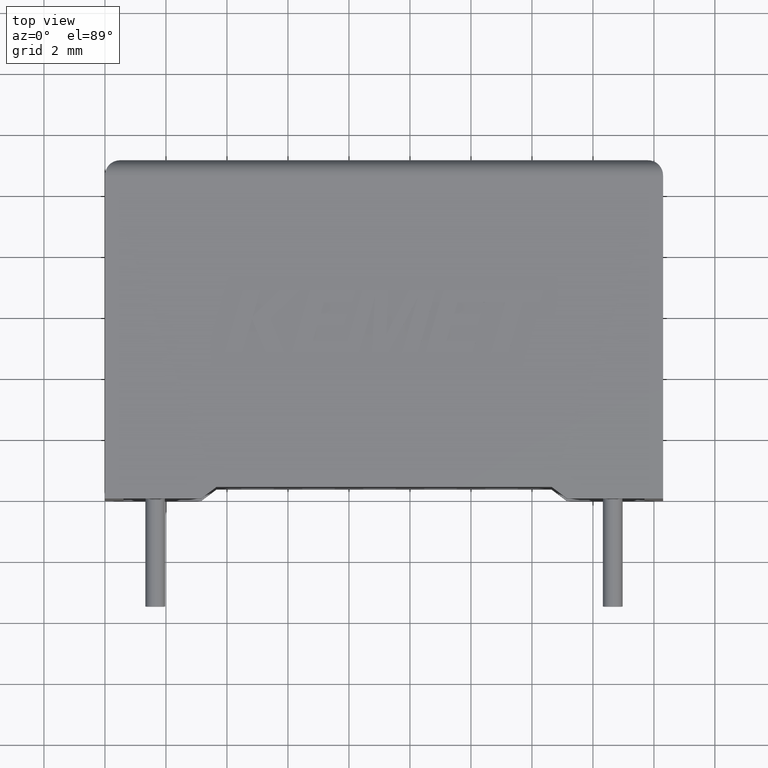
[diagram: clean part render]
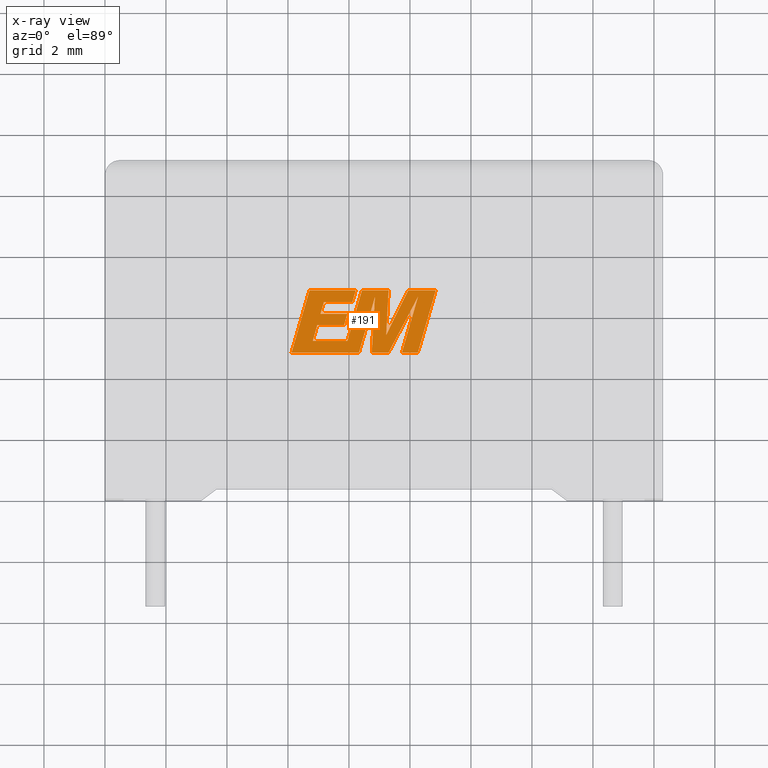
[diagram: x-ray — body ghosted, one internal face saturated and labeled with its STEP entity id]
A machine part, top view, then the same camera in x-ray: the body is ghosted and one INTERNAL B-rep face — a face not visible from any outside direction — is saturated and labeled: STEP entity #191.
In plain terms, the highlighted planar face has unit normal (0, 0, -1).
Its self-contained STEP definition (entity closure, byte-faithful):
#2 = LINE ( 'NONE', #3034, #321 ) ;
#6 = VERTEX_POINT ( 'NONE', #1328 ) ;
#9 = VERTEX_POINT ( 'NONE', #885 ) ;
#13 = CARTESIAN_POINT ( 'NONE',  ( 7.067466152442150040, 6.054669767896145416, 5.200000000000000178 ) ) ;
#26 = CARTESIAN_POINT ( 'NONE',  ( 9.947927223384223083, 6.826083738474082452, 5.200000000000000178 ) ) ;
#42 = EDGE_CURVE ( 'NONE', #2462, #1131, #2748, .T. ) ;
#86 = ORIENTED_EDGE ( 'NONE', *, *, #841, .F. ) ;
#101 = DIRECTION ( 'NONE',  ( 1.000000000000000000, 0.000000000000000000, 0.000000000000000000 ) ) ;
#102 = VERTEX_POINT ( 'NONE', #1151 ) ;
#135 = EDGE_CURVE ( 'NONE', #1307, #9, #2, .T. ) ;
#143 = DIRECTION ( 'NONE',  ( 0.2740217765954066076, 0.9617234872620595842, 0.000000000000000000 ) ) ;
#147 = VERTEX_POINT ( 'NONE', #220 ) ;
#162 = ORIENTED_EDGE ( 'NONE', *, *, #1968, .F. ) ;
#172 = VECTOR ( 'NONE', #1872, 1000.000000000000000 ) ;
#191 = ADVANCED_FACE ( 'NONE', ( #973 ), #2310, .T. ) ;
#192 = VERTEX_POINT ( 'NONE', #239 ) ;
#193 = LINE ( 'NONE', #1627, #2486 ) ;
#201 = CARTESIAN_POINT ( 'NONE',  ( -0.2224830842431323175, -1.858056502638177898, 5.200000000000000178 ) ) ;
#217 = VECTOR ( 'NONE', #2518, 1000.000000000000000 ) ;
#220 = CARTESIAN_POINT ( 'NONE',  ( 9.300475089700450226, 6.826083738474082452, 5.200000000000000178 ) ) ;
#225 = VERTEX_POINT ( 'NONE', #1684 ) ;
#227 = CARTESIAN_POINT ( 'NONE',  ( 6.708817521994718369, 6.826083738474082452, 5.200000000000000178 ) ) ;
#231 = DIRECTION ( 'NONE',  ( -0.2765379750249963853, -0.9610029908221278117, 0.000000000000000000 ) ) ;
#235 = CARTESIAN_POINT ( 'NONE',  ( 10.26329998931311138, 6.609959686718481109, 5.200000000000000178 ) ) ;
#239 = CARTESIAN_POINT ( 'NONE',  ( 7.950472854412912405, 5.166296892129775387, 5.200000000000000178 ) ) ;
#246 = LINE ( 'NONE', #1677, #277 ) ;
#277 = VECTOR ( 'NONE', #231, 999.9999999999998863 ) ;
#278 = VERTEX_POINT ( 'NONE', #2951 ) ;
#321 = VECTOR ( 'NONE', #505, 1000.000000000000227 ) ;
#330 = EDGE_CURVE ( 'NONE', #278, #225, #1467, .T. ) ;
#361 = LINE ( 'NONE', #1305, #916 ) ;
#371 = VECTOR ( 'NONE', #2147, 1000.000000000000227 ) ;
#386 = LINE ( 'NONE', #1760, #2665 ) ;
#394 = LINE ( 'NONE', #2065, #1905 ) ;
#426 = VECTOR ( 'NONE', #101, 1000.000000000000000 ) ;
#431 = VECTOR ( 'NONE', #2710, 1000.000000000000000 ) ;
#435 = VECTOR ( 'NONE', #930, 1000.000000000000227 ) ;
#461 = ORIENTED_EDGE ( 'NONE', *, *, #887, .F. ) ;
#466 = VECTOR ( 'NONE', #1866, 1000.000000000000000 ) ;
#505 = DIRECTION ( 'NONE',  ( 0.2732148821746286371, 0.9619530280415482526, 0.000000000000000000 ) ) ;
#531 = CARTESIAN_POINT ( 'NONE',  ( 9.295319520239521793, 4.776329999999935794, 5.200000000000000178 ) ) ;
#545 = LINE ( 'NONE', #804, #426 ) ;
#556 = LINE ( 'NONE', #651, #217 ) ;
#584 = DIRECTION ( 'NONE',  ( -0.2762517575166416606, -0.9610853065513833560, 0.000000000000000000 ) ) ;
#620 = CARTESIAN_POINT ( 'NONE',  ( 10.84693527213674891, 6.826083738474082452, 5.200000000000000178 ) ) ;
#624 = ORIENTED_EDGE ( 'NONE', *, *, #2442, .F. ) ;
#638 = CARTESIAN_POINT ( 'NONE',  ( 8.327195703898469858, 4.776329999999935794, 5.200000000000000178 ) ) ;
#647 = DIRECTION ( 'NONE',  ( 0.2759782365590697228, 0.9611638845408965182, 0.000000000000000000 ) ) ;
#651 = CARTESIAN_POINT ( 'NONE',  ( 9.300475089700450226, 6.826083738474082452, 5.200000000000000178 ) ) ;
#657 = ORIENTED_EDGE ( 'NONE', *, *, #135, .F. ) ;
#659 = CARTESIAN_POINT ( 'NONE',  ( 6.959357382888240018, 5.675740615357458552, 5.200000000000000178 ) ) ;
#670 = CARTESIAN_POINT ( 'NONE',  ( 7.839011005306755209, 5.675740615357458552, 5.200000000000000178 ) ) ;
#688 = VERTEX_POINT ( 'NONE', #2079 ) ;
#753 = ORIENTED_EDGE ( 'NONE', *, *, #3060, .F. ) ;
#773 = ORIENTED_EDGE ( 'NONE', *, *, #2484, .F. ) ;
#798 = VERTEX_POINT ( 'NONE', #670 ) ;
#804 = CARTESIAN_POINT ( 'NONE',  ( 7.962345746009985348, 4.776329999999935794, 5.200000000000000178 ) ) ;
#841 = EDGE_CURVE ( 'NONE', #2604, #2396, #246, .T. ) ;
#862 = EDGE_CURVE ( 'NONE', #959, #2357, #2397, .T. ) ;
#885 = CARTESIAN_POINT ( 'NONE',  ( 8.223106891968908982, 6.826083738474082452, 5.200000000000000178 ) ) ;
#887 = EDGE_CURVE ( 'NONE', #1131, #937, #1453, .T. ) ;
#916 = VECTOR ( 'NONE', #143, 1000.000000000000114 ) ;
#930 = DIRECTION ( 'NONE',  ( -0.2760118818968579912, -0.9611542233438683525, 0.000000000000000000 ) ) ;
#932 = DIRECTION ( 'NONE',  ( 1.000000000000000000, 0.000000000000000000, 0.000000000000000000 ) ) ;
#935 = CARTESIAN_POINT ( 'NONE',  ( 9.295319520239521793, 4.776329999999935794, 5.200000000000000178 ) ) ;
#937 = VERTEX_POINT ( 'NONE', #982 ) ;
#959 = VERTEX_POINT ( 'NONE', #531 ) ;
#973 = FACE_OUTER_BOUND ( 'NONE', #2429, .T. ) ;
#982 = CARTESIAN_POINT ( 'NONE',  ( 8.748873504561524683, 4.776329999999935794, 5.200000000000000178 ) ) ;
#984 = ORIENTED_EDGE ( 'NONE', *, *, #1984, .F. ) ;
#1014 = CARTESIAN_POINT ( 'NONE',  ( 10.25761595853780150, 4.776329999999935794, 5.200000000000000178 ) ) ;
#1059 = EDGE_CURVE ( 'NONE', #225, #2777, #2343, .T. ) ;
#1067 = VECTOR ( 'NONE', #2290, 1000.000000000000000 ) ;
#1087 = LINE ( 'NONE', #2443, #2192 ) ;
#1100 = ORIENTED_EDGE ( 'NONE', *, *, #3005, .F. ) ;
#1110 = LINE ( 'NONE', #1835, #2000 ) ;
#1131 = VERTEX_POINT ( 'NONE', #1496 ) ;
#1132 = DIRECTION ( 'NONE',  ( 1.000000000000000000, 0.000000000000000000, 0.000000000000000000 ) ) ;
#1139 = LINE ( 'NONE', #659, #466 ) ;
#1151 = CARTESIAN_POINT ( 'NONE',  ( 9.736741848859448822, 4.776329999999935794, 5.200000000000000178 ) ) ;
#1237 = EDGE_CURVE ( 'NONE', #2154, #192, #386, .T. ) ;
#1288 = DIRECTION ( 'NONE',  ( -1.000000000000000000, 0.000000000000000000, 0.000000000000000000 ) ) ;
#1305 = CARTESIAN_POINT ( 'NONE',  ( 6.814202693454946669, 5.166296892129775387, 5.200000000000000178 ) ) ;
#1306 = VECTOR ( 'NONE', #2324, 1000.000000000000000 ) ;
#1307 = VERTEX_POINT ( 'NONE', #1516 ) ;
#1328 = CARTESIAN_POINT ( 'NONE',  ( 9.221647422191399102, 5.361713331603874089, 5.200000000000000178 ) ) ;
#1339 = LINE ( 'NONE', #1590, #431 ) ;
#1353 = CARTESIAN_POINT ( 'NONE',  ( 7.947244424658283179, 6.054669767896145416, 5.200000000000000178 ) ) ;
#1363 = CARTESIAN_POINT ( 'NONE',  ( 8.223106891968908982, 6.826083738474082452, 5.200000000000000178 ) ) ;
#1383 = EDGE_CURVE ( 'NONE', #2011, #798, #1139, .T. ) ;
#1403 = EDGE_CURVE ( 'NONE', #688, #1582, #1922, .T. ) ;
#1428 = CARTESIAN_POINT ( 'NONE',  ( 6.118980910089239167, 4.776329999999934905, 5.200000000000000178 ) ) ;
#1453 = LINE ( 'NONE', #2360, #1998 ) ;
#1467 = LINE ( 'NONE', #1014, #2085 ) ;
#1468 = CARTESIAN_POINT ( 'NONE',  ( 8.427557490167984611, 6.826083738474082452, 5.200000000000000178 ) ) ;
#1496 = CARTESIAN_POINT ( 'NONE',  ( 8.851161128560534053, 6.601171875984305437, 5.200000000000000178 ) ) ;
#1516 = CARTESIAN_POINT ( 'NONE',  ( 8.112293221804671717, 6.435923639161655885, 5.200000000000000178 ) ) ;
#1548 = ORIENTED_EDGE ( 'NONE', *, *, #1403, .F. ) ;
#1555 = ORIENTED_EDGE ( 'NONE', *, *, #42, .F. ) ;
#1582 = VERTEX_POINT ( 'NONE', #2432 ) ;
#1585 = LINE ( 'NONE', #2739, #1661 ) ;
#1586 = ORIENTED_EDGE ( 'NONE', *, *, #1383, .F. ) ;
#1590 = CARTESIAN_POINT ( 'NONE',  ( 7.950472854412912405, 5.166296892129775387, 5.200000000000000178 ) ) ;
#1593 = ORIENTED_EDGE ( 'NONE', *, *, #1622, .F. ) ;
#1622 = EDGE_CURVE ( 'NONE', #2515, #2011, #361, .T. ) ;
#1627 = CARTESIAN_POINT ( 'NONE',  ( 7.178404472403894232, 6.435923639161655885, 5.200000000000000178 ) ) ;
#1639 = ORIENTED_EDGE ( 'NONE', *, *, #1059, .F. ) ;
#1642 = DIRECTION ( 'NONE',  ( -0.05596501978069369498, -0.9984327301130239141, 0.000000000000000000 ) ) ;
#1661 = VECTOR ( 'NONE', #2753, 1000.000000000000000 ) ;
#1677 = CARTESIAN_POINT ( 'NONE',  ( 6.708817521994718369, 6.826083738474082452, 5.200000000000000178 ) ) ;
#1684 = CARTESIAN_POINT ( 'NONE',  ( 10.84693527213674891, 6.826083738474082452, 5.200000000000000178 ) ) ;
#1703 = VECTOR ( 'NONE', #647, 1000.000000000000227 ) ;
#1747 = DIRECTION ( 'NONE',  ( 1.000000000000000000, 0.000000000000000000, 0.000000000000000000 ) ) ;
#1760 = CARTESIAN_POINT ( 'NONE',  ( 8.427557490167984611, 6.826083738474082452, 5.200000000000000178 ) ) ;
#1769 = ORIENTED_EDGE ( 'NONE', *, *, #1981, .F. ) ;
#1827 = CARTESIAN_POINT ( 'NONE',  ( 10.26329998931311138, 6.609959686718481109, 5.200000000000000178 ) ) ;
#1835 = CARTESIAN_POINT ( 'NONE',  ( 7.839011005306755209, 5.675740615357458552, 5.200000000000000178 ) ) ;
#1866 = DIRECTION ( 'NONE',  ( 1.000000000000000000, 0.000000000000000000, 0.000000000000000000 ) ) ;
#1867 = DIRECTION ( 'NONE',  ( 0.000000000000000000, 0.000000000000000000, -1.000000000000000000 ) ) ;
#1872 = DIRECTION ( 'NONE',  ( 0.4668459304955080436, 0.8843386665637680277, 0.000000000000000000 ) ) ;
#1888 = EDGE_CURVE ( 'NONE', #2396, #2462, #545, .T. ) ;
#1905 = VECTOR ( 'NONE', #1132, 1000.000000000000000 ) ;
#1922 = LINE ( 'NONE', #13, #371 ) ;
#1956 = DIRECTION ( 'NONE',  ( 0.2763139702539113007, 0.9610674221107073922, 0.000000000000000000 ) ) ;
#1968 = EDGE_CURVE ( 'NONE', #147, #2154, #556, .T. ) ;
#1981 = EDGE_CURVE ( 'NONE', #9, #2604, #2271, .T. ) ;
#1984 = EDGE_CURVE ( 'NONE', #6, #147, #1585, .T. ) ;
#1993 = AXIS2_PLACEMENT_3D ( 'NONE', #201, #1867, #2340 ) ;
#1998 = VECTOR ( 'NONE', #1642, 1000.000000000000227 ) ;
#2000 = VECTOR ( 'NONE', #2967, 1000.000000000000000 ) ;
#2001 = EDGE_CURVE ( 'NONE', #937, #959, #394, .T. ) ;
#2011 = VERTEX_POINT ( 'NONE', #2032 ) ;
#2025 = ORIENTED_EDGE ( 'NONE', *, *, #330, .F. ) ;
#2032 = CARTESIAN_POINT ( 'NONE',  ( 6.959357382888240018, 5.675740615357458552, 5.200000000000000178 ) ) ;
#2065 = CARTESIAN_POINT ( 'NONE',  ( 8.748873504561524683, 4.776329999999935794, 5.200000000000000178 ) ) ;
#2079 = CARTESIAN_POINT ( 'NONE',  ( 7.067466152442150040, 6.054669767896145416, 5.200000000000000178 ) ) ;
#2085 = VECTOR ( 'NONE', #1956, 1000.000000000000114 ) ;
#2140 = ORIENTED_EDGE ( 'NONE', *, *, #1888, .F. ) ;
#2147 = DIRECTION ( 'NONE',  ( 0.2793947940878294123, 0.9601763114327593884, 0.000000000000000000 ) ) ;
#2154 = VERTEX_POINT ( 'NONE', #1468 ) ;
#2192 = VECTOR ( 'NONE', #1747, 1000.000000000000000 ) ;
#2198 = LINE ( 'NONE', #2492, #2787 ) ;
#2255 = EDGE_CURVE ( 'NONE', #192, #2515, #1339, .T. ) ;
#2264 = VERTEX_POINT ( 'NONE', #1353 ) ;
#2271 = LINE ( 'NONE', #1363, #1067 ) ;
#2283 = CARTESIAN_POINT ( 'NONE',  ( 8.327195703898469858, 4.776329999999935794, 5.200000000000000178 ) ) ;
#2290 = DIRECTION ( 'NONE',  ( -1.000000000000000000, 0.000000000000000000, 0.000000000000000000 ) ) ;
#2310 = PLANE ( 'NONE',  #1993 ) ;
#2324 = DIRECTION ( 'NONE',  ( -1.000000000000000000, 0.000000000000000000, 0.000000000000000000 ) ) ;
#2340 = DIRECTION ( 'NONE',  ( -1.000000000000000000, 0.000000000000000000, 0.000000000000000000 ) ) ;
#2343 = LINE ( 'NONE', #620, #1306 ) ;
#2346 = EDGE_CURVE ( 'NONE', #798, #2264, #1110, .T. ) ;
#2347 = ORIENTED_EDGE ( 'NONE', *, *, #2001, .F. ) ;
#2357 = VERTEX_POINT ( 'NONE', #235 ) ;
#2360 = CARTESIAN_POINT ( 'NONE',  ( 8.851161128560534053, 6.601171875984305437, 5.200000000000000178 ) ) ;
#2396 = VERTEX_POINT ( 'NONE', #1428 ) ;
#2397 = LINE ( 'NONE', #935, #172 ) ;
#2429 = EDGE_LOOP ( 'NONE', ( #1639, #2025, #624, #1100, #2491, #2347, #461, #1555, #2140, #86, #1769, #657, #2857, #1548, #773, #2580, #1586, #1593, #2786, #2906, #162, #984, #753 ) ) ;
#2432 = CARTESIAN_POINT ( 'NONE',  ( 7.178404472403894232, 6.435923639161655885, 5.200000000000000178 ) ) ;
#2442 = EDGE_CURVE ( 'NONE', #102, #278, #1087, .T. ) ;
#2443 = CARTESIAN_POINT ( 'NONE',  ( 9.736741848859448822, 4.776329999999935794, 5.200000000000000178 ) ) ;
#2462 = VERTEX_POINT ( 'NONE', #638 ) ;
#2484 = EDGE_CURVE ( 'NONE', #2264, #688, #2198, .T. ) ;
#2486 = VECTOR ( 'NONE', #932, 1000.000000000000000 ) ;
#2491 = ORIENTED_EDGE ( 'NONE', *, *, #862, .F. ) ;
#2492 = CARTESIAN_POINT ( 'NONE',  ( 7.947244424658283179, 6.054669767896145416, 5.200000000000000178 ) ) ;
#2515 = VERTEX_POINT ( 'NONE', #2930 ) ;
#2518 = DIRECTION ( 'NONE',  ( -1.000000000000000000, 0.000000000000000000, 0.000000000000000000 ) ) ;
#2569 = CARTESIAN_POINT ( 'NONE',  ( 9.947927223384223083, 6.826083738474082452, 5.200000000000000178 ) ) ;
#2580 = ORIENTED_EDGE ( 'NONE', *, *, #2346, .F. ) ;
#2604 = VERTEX_POINT ( 'NONE', #227 ) ;
#2647 = EDGE_CURVE ( 'NONE', #1582, #1307, #193, .T. ) ;
#2665 = VECTOR ( 'NONE', #584, 1000.000000000000227 ) ;
#2683 = VECTOR ( 'NONE', #2811, 1000.000000000000227 ) ;
#2710 = DIRECTION ( 'NONE',  ( -1.000000000000000000, 0.000000000000000000, 0.000000000000000000 ) ) ;
#2739 = CARTESIAN_POINT ( 'NONE',  ( 9.221647422191399102, 5.361713331603874089, 5.200000000000000178 ) ) ;
#2748 = LINE ( 'NONE', #2283, #1703 ) ;
#2753 = DIRECTION ( 'NONE',  ( 0.05375259206908576670, 0.9985542843760946141, 0.000000000000000000 ) ) ;
#2777 = VERTEX_POINT ( 'NONE', #26 ) ;
#2786 = ORIENTED_EDGE ( 'NONE', *, *, #2255, .F. ) ;
#2787 = VECTOR ( 'NONE', #1288, 1000.000000000000000 ) ;
#2811 = DIRECTION ( 'NONE',  ( -0.4443210308329518243, -0.8958676361826801715, 0.000000000000000000 ) ) ;
#2857 = ORIENTED_EDGE ( 'NONE', *, *, #2647, .F. ) ;
#2906 = ORIENTED_EDGE ( 'NONE', *, *, #1237, .F. ) ;
#2930 = CARTESIAN_POINT ( 'NONE',  ( 6.814202693454946669, 5.166296892129775387, 5.200000000000000178 ) ) ;
#2951 = CARTESIAN_POINT ( 'NONE',  ( 10.25761595853780150, 4.776329999999935794, 5.200000000000000178 ) ) ;
#2967 = DIRECTION ( 'NONE',  ( 0.2746459304916892830, 0.9615454294334481178, 0.000000000000000000 ) ) ;
#3005 = EDGE_CURVE ( 'NONE', #2357, #102, #3018, .T. ) ;
#3018 = LINE ( 'NONE', #1827, #435 ) ;
#3034 = CARTESIAN_POINT ( 'NONE',  ( 8.112293221804671717, 6.435923639161655885, 5.200000000000000178 ) ) ;
#3049 = LINE ( 'NONE', #2569, #2683 ) ;
#3060 = EDGE_CURVE ( 'NONE', #2777, #6, #3049, .T. ) ;